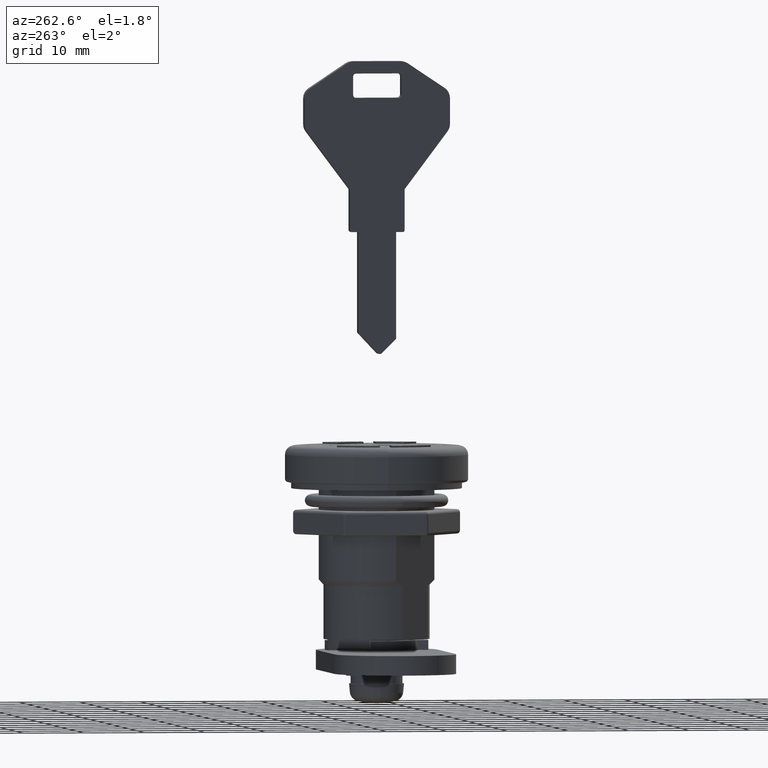
[diagram: clean part render]
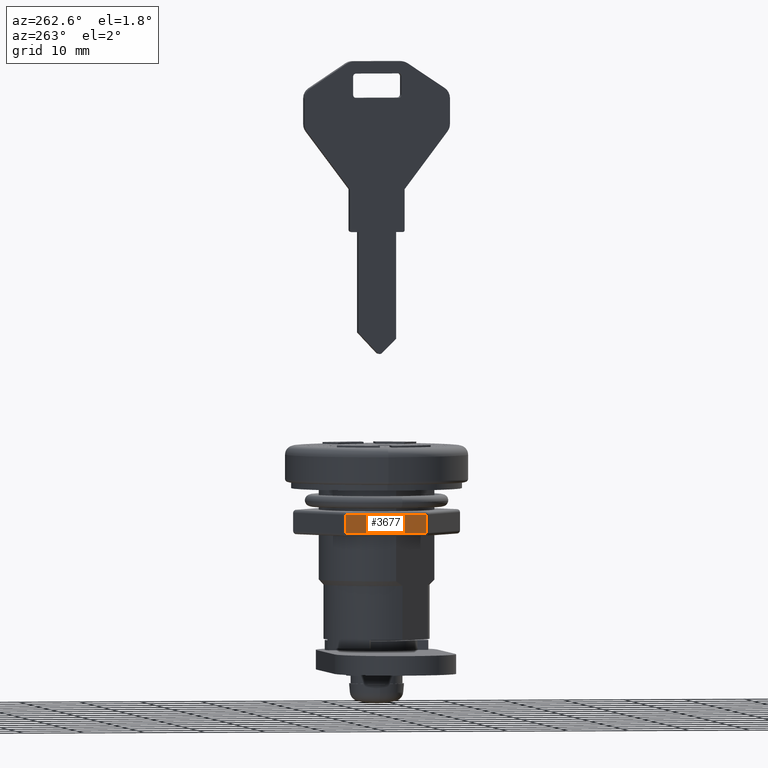
[diagram: same view with one face highlighted and labeled with its STEP entity id]
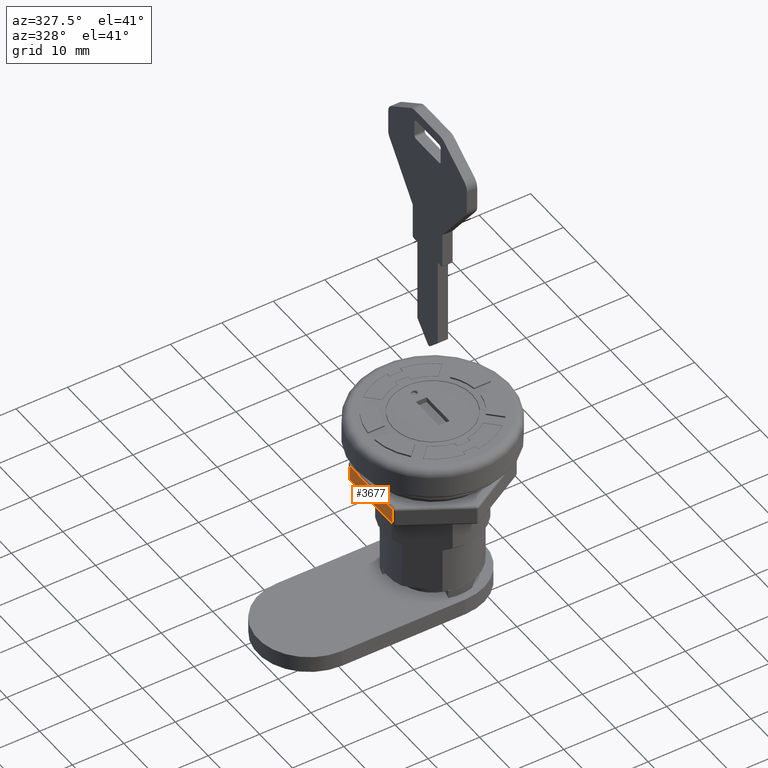
[diagram: same view with one face highlighted and labeled with its STEP entity id]
A machine part, auxiliary view. The second image highlights one B-rep face of the part: STEP entity #3677.
A second angle (auxiliary view) of the same face is appended — the face is thin or edge-on in the first view.
In plain terms, the highlighted planar face has unit normal (-1, -0, 0).
Its self-contained STEP definition (entity closure, byte-faithful):
#124 = VECTOR ( 'NONE', #1806, 1000.000000000000000 ) ;
#592 = DIRECTION ( 'NONE',  ( 2.503857664561930900E-016, -1.000000000000000000, 0.0000000000000000000 ) ) ;
#655 = CARTESIAN_POINT ( 'NONE',  ( -11.99999999999999300, 6.639528095680703700, -0.5000000000000000000 ) ) ;
#1008 = EDGE_CURVE ( 'NONE', #7720, #3684, #2174, .T. ) ;
#1251 = LINE ( 'NONE', #6403, #5983 ) ;
#1449 = ORIENTED_EDGE ( 'NONE', *, *, #7275, .T. ) ;
#1806 = DIRECTION ( 'NONE',  ( -0.0000000000000000000, -0.0000000000000000000, -1.000000000000000000 ) ) ;
#2035 = LINE ( 'NONE', #5661, #124 ) ;
#2174 = LINE ( 'NONE', #7608, #7289 ) ;
#2424 = VECTOR ( 'NONE', #5087, 1000.000000000000000 ) ;
#2794 = VERTEX_POINT ( 'NONE', #4669 ) ;
#2795 = DIRECTION ( 'NONE',  ( -1.000000000000000000, -2.503857664561930900E-016, 0.0000000000000000000 ) ) ;
#3443 = CARTESIAN_POINT ( 'NONE',  ( -11.99999999999998900, -6.639528095680700100, -3.500000000000000000 ) ) ;
#3472 = ORIENTED_EDGE ( 'NONE', *, *, #3524, .T. ) ;
#3524 = EDGE_CURVE ( 'NONE', #2794, #8204, #4154, .T. ) ;
#3677 = ADVANCED_FACE ( 'NONE', ( #5950 ), #7255, .T. ) ;
#3684 = VERTEX_POINT ( 'NONE', #3443 ) ;
#4154 = LINE ( 'NONE', #4437, #2424 ) ;
#4437 = CARTESIAN_POINT ( 'NONE',  ( -11.99999999999999300, 6.928203230275515000, -0.5000000000000000000 ) ) ;
#4669 = CARTESIAN_POINT ( 'NONE',  ( -11.99999999999998900, -6.639528095680700100, -0.5000000000000000000 ) ) ;
#4735 = CARTESIAN_POINT ( 'NONE',  ( -11.99999999999999300, 6.928203230275515000, -4.000000000000000000 ) ) ;
#5087 = DIRECTION ( 'NONE',  ( -2.503857664561930900E-016, 1.000000000000000000, -0.0000000000000000000 ) ) ;
#5232 = ORIENTED_EDGE ( 'NONE', *, *, #8065, .T. ) ;
#5661 = CARTESIAN_POINT ( 'NONE',  ( -11.99999999999999300, 6.639528095680703700, -4.000000000000000000 ) ) ;
#5950 = FACE_OUTER_BOUND ( 'NONE', #7385, .T. ) ;
#5983 = VECTOR ( 'NONE', #7044, 1000.000000000000000 ) ;
#6392 = AXIS2_PLACEMENT_3D ( 'NONE', #4735, #2795, #7292 ) ;
#6403 = CARTESIAN_POINT ( 'NONE',  ( -11.99999999999998900, -6.639528095680700100, -4.000000000000000000 ) ) ;
#7044 = DIRECTION ( 'NONE',  ( 0.0000000000000000000, 0.0000000000000000000, 1.000000000000000000 ) ) ;
#7158 = CARTESIAN_POINT ( 'NONE',  ( -11.99999999999999300, 6.639528095680703700, -3.500000000000000000 ) ) ;
#7255 = PLANE ( 'NONE',  #6392 ) ;
#7275 = EDGE_CURVE ( 'NONE', #3684, #2794, #1251, .T. ) ;
#7289 = VECTOR ( 'NONE', #592, 1000.000000000000000 ) ;
#7292 = DIRECTION ( 'NONE',  ( 2.503857664561930900E-016, -1.000000000000000000, 0.0000000000000000000 ) ) ;
#7385 = EDGE_LOOP ( 'NONE', ( #7497, #1449, #3472, #5232 ) ) ;
#7497 = ORIENTED_EDGE ( 'NONE', *, *, #1008, .T. ) ;
#7608 = CARTESIAN_POINT ( 'NONE',  ( -11.99999999999998900, -6.928203230275511400, -3.500000000000000000 ) ) ;
#7720 = VERTEX_POINT ( 'NONE', #7158 ) ;
#8065 = EDGE_CURVE ( 'NONE', #8204, #7720, #2035, .T. ) ;
#8204 = VERTEX_POINT ( 'NONE', #655 ) ;